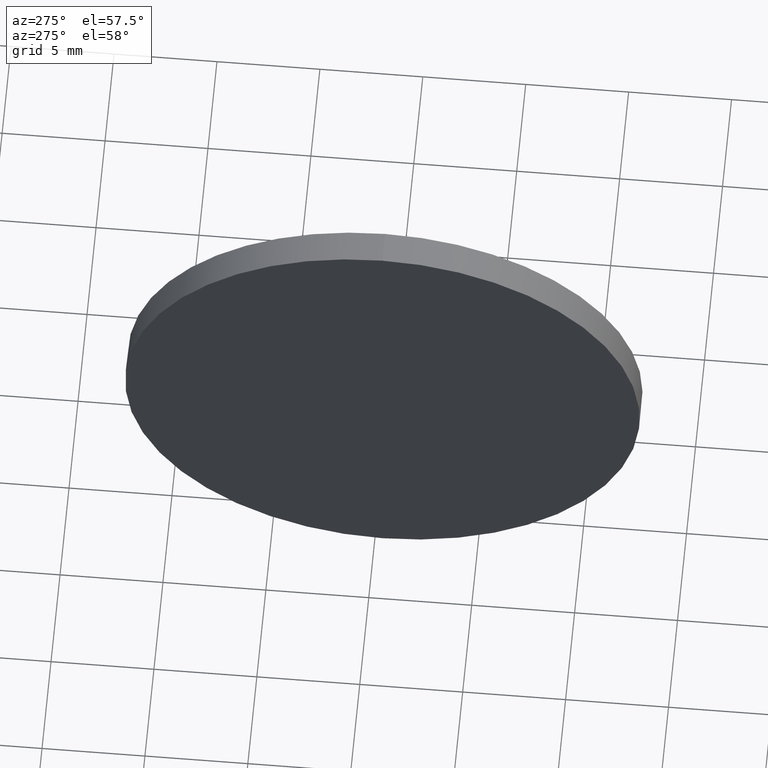
[diagram: clean part render]
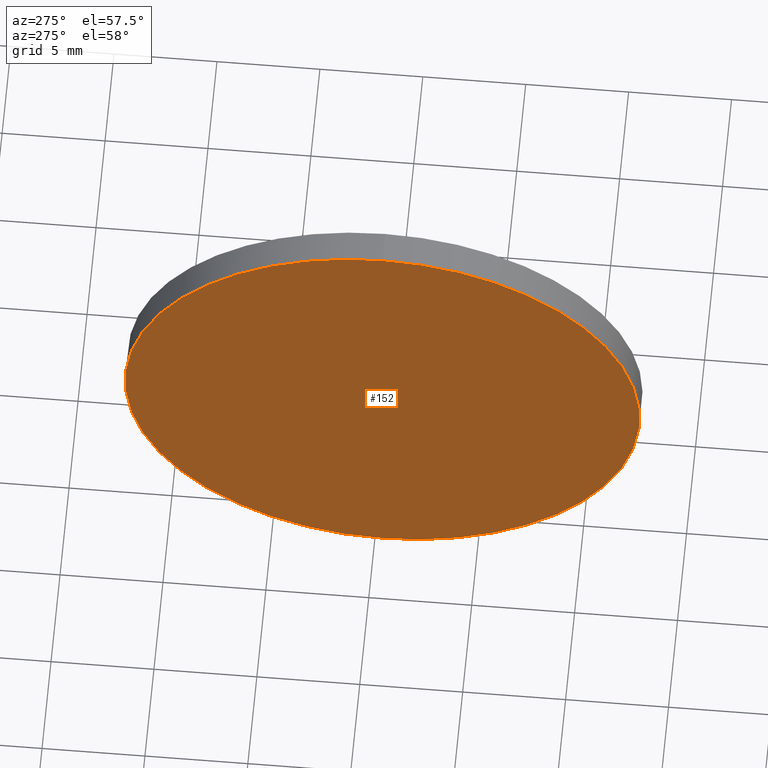
[diagram: same view with one face highlighted and labeled with its STEP entity id]
A machine part, auxiliary view. The second image highlights one B-rep face of the part: STEP entity #152.
In plain terms, the highlighted planar face has unit normal (1, 0, 0).
Its self-contained STEP definition (entity closure, byte-faithful):
#3 = DIRECTION ( 'NONE',  ( -1.000000000000000000, -0.0000000000000000000, -0.0000000000000000000 ) ) ;
#7 = CARTESIAN_POINT ( 'NONE',  ( 483.1155688377202800, 64.61114533818170000, 12.49999999999999600 ) ) ;
#11 = AXIS2_PLACEMENT_3D ( 'NONE', #56, #160, #175 ) ;
#22 = CIRCLE ( 'NONE', #94, 12.49999999999999600 ) ;
#31 = EDGE_LOOP ( 'NONE', ( #99, #76 ) ) ;
#56 = CARTESIAN_POINT ( 'NONE',  ( 483.1155688377202800, 64.61114533818170000, 0.0000000000000000000 ) ) ;
#59 = DIRECTION ( 'NONE',  ( 0.0000000000000000000, 0.0000000000000000000, 1.000000000000000000 ) ) ;
#60 = DIRECTION ( 'NONE',  ( 0.0000000000000000000, 0.0000000000000000000, 1.000000000000000000 ) ) ;
#74 = PLANE ( 'NONE',  #11 ) ;
#76 = ORIENTED_EDGE ( 'NONE', *, *, #182, .T. ) ;
#82 = CIRCLE ( 'NONE', #101, 12.49999999999999600 ) ;
#91 = VERTEX_POINT ( 'NONE', #118 ) ;
#94 = AXIS2_PLACEMENT_3D ( 'NONE', #129, #3, #59 ) ;
#98 = FACE_OUTER_BOUND ( 'NONE', #31, .T. ) ;
#99 = ORIENTED_EDGE ( 'NONE', *, *, #113, .T. ) ;
#100 = CARTESIAN_POINT ( 'NONE',  ( 483.1155688377202800, 64.61114533818170000, 0.0000000000000000000 ) ) ;
#101 = AXIS2_PLACEMENT_3D ( 'NONE', #100, #127, #60 ) ;
#113 = EDGE_CURVE ( 'NONE', #154, #91, #82, .T. ) ;
#118 = CARTESIAN_POINT ( 'NONE',  ( 483.1155688377202800, 64.61114533818170000, -12.49999999999999600 ) ) ;
#127 = DIRECTION ( 'NONE',  ( -1.000000000000000000, -0.0000000000000000000, -0.0000000000000000000 ) ) ;
#129 = CARTESIAN_POINT ( 'NONE',  ( 483.1155688377202800, 64.61114533818170000, 0.0000000000000000000 ) ) ;
#152 = ADVANCED_FACE ( 'NONE', ( #98 ), #74, .F. ) ;
#154 = VERTEX_POINT ( 'NONE', #7 ) ;
#160 = DIRECTION ( 'NONE',  ( 1.000000000000000000, 0.0000000000000000000, 0.0000000000000000000 ) ) ;
#175 = DIRECTION ( 'NONE',  ( 0.0000000000000000000, 0.0000000000000000000, -1.000000000000000000 ) ) ;
#182 = EDGE_CURVE ( 'NONE', #91, #154, #22, .T. ) ;